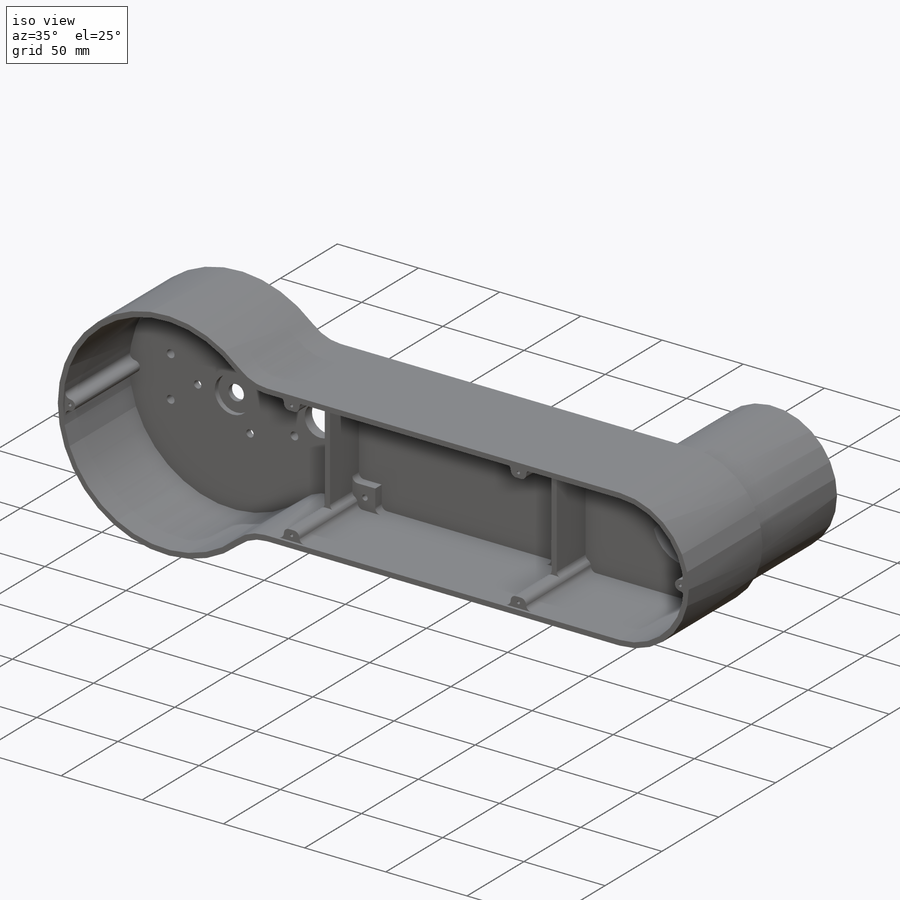
[diagram: iso view]
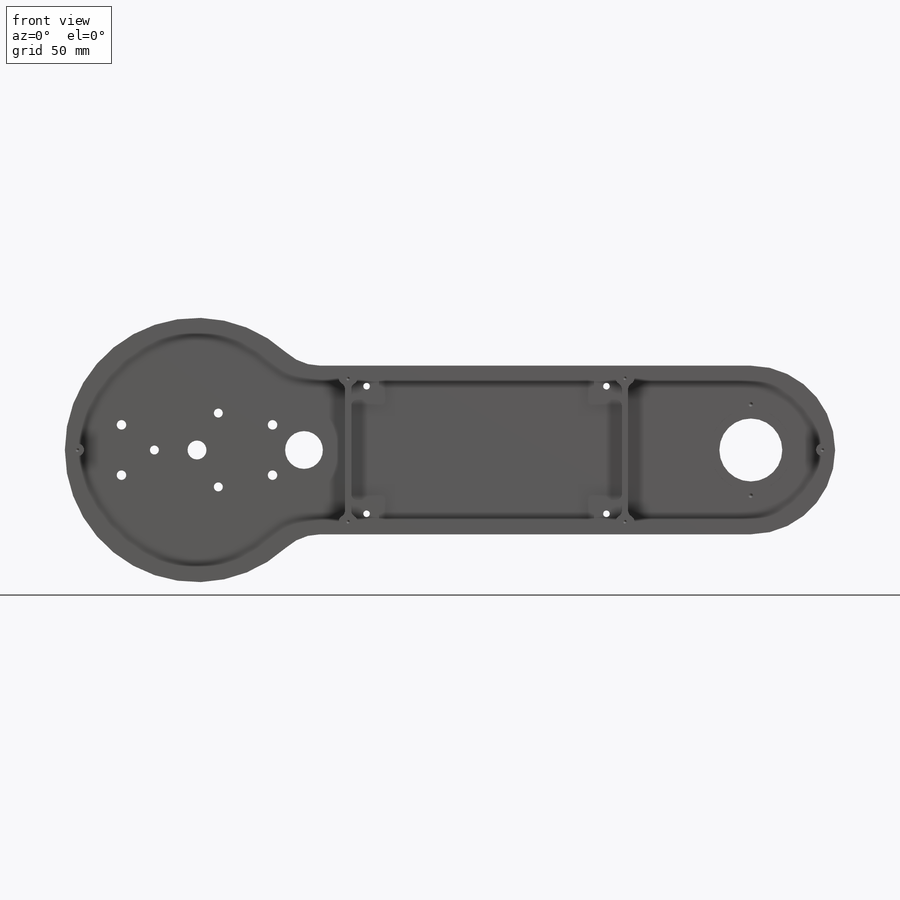
[diagram: front view]
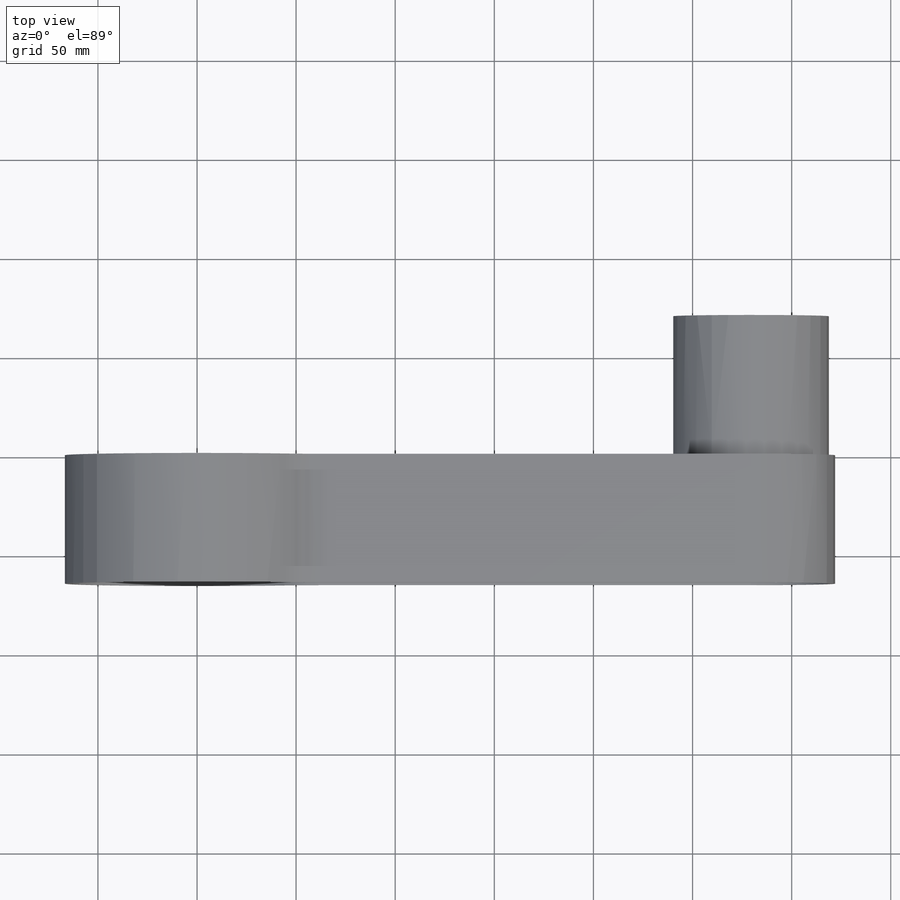
[diagram: top view]
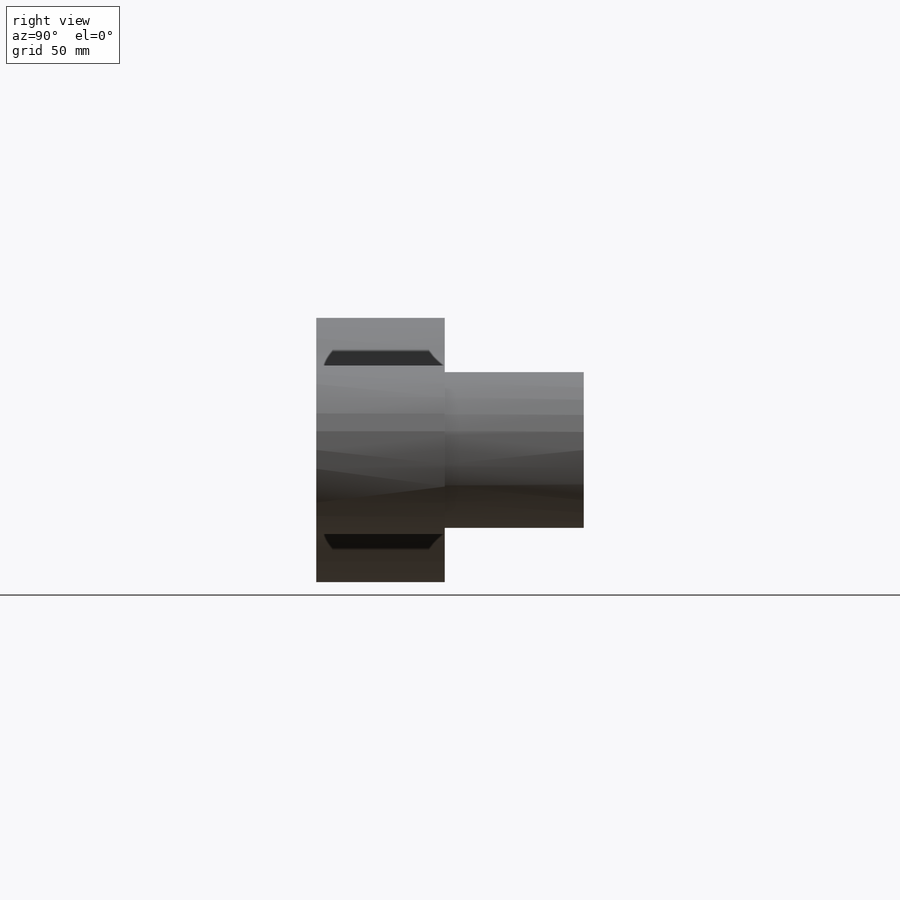
[diagram: right view]
SOLIDWORKS PART (.sldprt)
format: sldprt  version: not decoded by parser v0  size: 1,007,616 bytes
history: native  units: mm
features: sketch x23, extrude x10, plane x8, thread x8, cut_extrude x7, fillet x5, hole x3, material x1, revolve x1, cut_revolve x1 (+13 scaffold rows collapsed)
feature tree (80):
  scaffold x13  (default folders/planes/origin — collapsed)
  material  "6061-T6 (SS)"
  sketch  "Sketch1"  dims[c1.D1=85.09mm c1.D2=38.1mm c1.D6=63.5mm c1.D7=~39.382013mm c2.D2=279.4mm c2.D1=85.09mm c2.D4=127.0mm c2.D5=3.175mm c2.D3=3.175mm c2.D6=3.175mm c2.D7=3.175mm c3.D3=3.175mm]
  extrude  "Boss-Extrude1"  Depth=64.8335mm
  extrude  "Boss-Extrude3"  [1 undecoded]
  sketch  "Sketch1<4>"  dims[D1=6.35mm]
  plane  "Plane1"
  plane  "Plane2"
  plane  "Plane3"  Offset=0mm
  plane  "Plane9"
  plane  "Wall Plane"  Offset=146.05mm
  sketch  "Sketch3"  dims[D1=9.525mm]
  cut_extrude  "Cut-Extrude1"  [1 undecoded]
  sketch  "Sketch4"  dims[D2=6.0mm D1=28.0mm]
  cut_extrude  "Cut-Extrude2"  Depth=5.08mm
  extrude  "Axis2"  [1 undecoded]
  extrude  "Axis3"  [1 undecoded]
  sketch  "Sketch39"  dims[D1=13.0mm D2=13.0mm]
  cut_extrude  "Cut-Extrude9"  Depth=4mm
  sketch  "Sketch5"  dims[c1.D1=63.5mm c1.D2=69.85mm c2.D1=63.5mm c2.D2=3.175mm c3.D1=6.35mm]
  extrude  "Boss-Extrude4"  Depth=11.1125mm
  extrude  "Axis4"  [1 undecoded]
  sketch  "Sketch42"  dims[c1.D1=~45.10024mm c1.D2=3.175mm c1.D3=15.875mm c1.D4=20.6375mm c1.D5=21.9075mm c1.D6=22.225mm c1.D7=1.5748mm c2.D1=~41.92524mm c2.D8=1.5875mm]
  revolve  "Revolve1"  Angle=360deg
  sketch  "Sketch43"  dims[D1=1.5875mm D2=20.6375mm]
  cut_revolve  "Cut-Revolve1"  Angle=360deg
  plane  "Plane5"
  extrude  "Axis5"  [1 undecoded]
  plane  "Plane7"  Offset=22.225mm
  sketch  "Sketch10"  dims[D2=4.7625mm D6=19.05mm D1=12.7mm D3=38.1mm D4=38.1mm D5=12.7mm D7=53.975mm]
  sketch  "Sketch23"  dims[c1.D2=1.5875mm c1.D1=36.195mm c1.D3=36.195mm c2.D3=4.0]
  cut_extrude  "Cut-Extrude6"  Depth=12.7mm
  sketch  "Sketch24"  dims[D1=46.0248mm D2=~5.514885mm]
  hole  "#4-40 Tapped Hole1"  Diameter=2.2606mm Depth=8.255mm
  sketch  "Sketch26"
  sketch  "Sketch25"  dims[hole-wizard template sketch: 50 standard entries collapsed; hole parameters above]
  thread  "Hole Thread47"  Diameter=6.35mm  [1 undecoded]
  thread  "Hole Thread48"  Diameter=6.35mm  [1 undecoded]
  sketch  "Sketch28"  dims[c1.D1=6.35mm c1.D2=9.525mm c1.D3=50.8mm c1.D4=6.35mm c1.D5=6.35mm c1.D6=91.44mm c1.D7=9.525mm c1.D8=6.35mm c1.D9=6.35mm c1.D10=6.35mm c1.D11=3.175mm c1.D12=3.175mm c1.D13=3.175mm c1.D14=3.1877mm c2.D3=50.8mm c2.D6=50.8mm c3.D3=76.2mm c3.D15=~6.731617mm c3.D6=63.5mm]
  extrude  "Boss-Extrude7"  Depth=1.5875mm
  extrude  "Boss-Extrude8"  [1 undecoded]
  sketch  "Sketch28<4>"  dims[D1=25.4mm]
  fillet  "Fillet1"  Radius=3.175mm
  fillet  "Fillet2"  Radius=3.175mm
  plane  "Plane8"
  hole  "#2-56 Tapped Hole2"  Diameter=1.778mm Depth=12.7mm
  sketch  "Sketch33"
  sketch  "Sketch31"  dims[hole-wizard template sketch: 50 standard entries collapsed; hole parameters above]
  thread  "Hole Thread41"  Diameter=11.43mm  [1 undecoded]
  thread  "Hole Thread42"  Diameter=11.43mm  [1 undecoded]
  thread  "Hole Thread43"  Diameter=11.43mm  [1 undecoded]
  thread  "Hole Thread44"  Diameter=11.43mm  [1 undecoded]
  thread  "Hole Thread45"  Diameter=11.43mm  [1 undecoded]
  thread  "Hole Thread46"  Diameter=11.43mm  [1 undecoded]
  sketch  "Sketch35"  dims[c1.D1=43.0mm c1.D2=~4.182068mm c2.D2=3.0]
  sketch  "Sketch7"  dims[c1.D11=3.302mm c1.D1=12.7mm c1.D2=117.1702mm c1.D3=78.74mm c1.D4=50.8mm c2.D1=25.4mm c2.D5=25.4mm c2.D4=3.175mm c2.D6=32.1818mm c2.D7=3.175mm c2.D2=121.031mm c2.D8=6.35mm c2.D9=6.35mm c2.D10=32.1818mm c2.D11=121.031mm]
  extrude  "Boss-Extrude9"  Depth=5.715mm
  hole  "CSK for M4 Hex Socket Countersunk Head Screw1"  Diameter=4.5mm Depth=64.8335mm
  sketch  "Sketch37"
  sketch  "Sketch36"  dims[hole-wizard template sketch: 55 standard entries collapsed; hole parameters kept: c17.Thru Hole Depth=64.8335mm c17.Near C'Sink Dia.=9.18mm c17.D4=~3.666174mm c17.Near C'Sink Angle=90.0deg]
  sketch  "Sketch38"  dims[D1=22.0mm]
  cut_extrude  "Cut-Extrude8"  Depth=3.175mm
  fillet  "Fillet8"  Radius=25.4mm
  fillet  "Fillet9"  Radius=25.4mm
  fillet  "Fillet10"  Radius=3.175mm
  cut_extrude  "Cut-Extrude10"  [1 undecoded]
  cut_extrude  "Cut-Extrude11"  [1 undecoded]
  sketch  "Sketch7<3>"
decode coverage: 45 of 58 modeling features carry decoded parameters
note: ~ marks probable driven/reference dimensions
note: 17 parameter values undecoded
summary: no parameter record found for 9 features
note: suppression state not decoded; provenance and decode notes live in map.json
